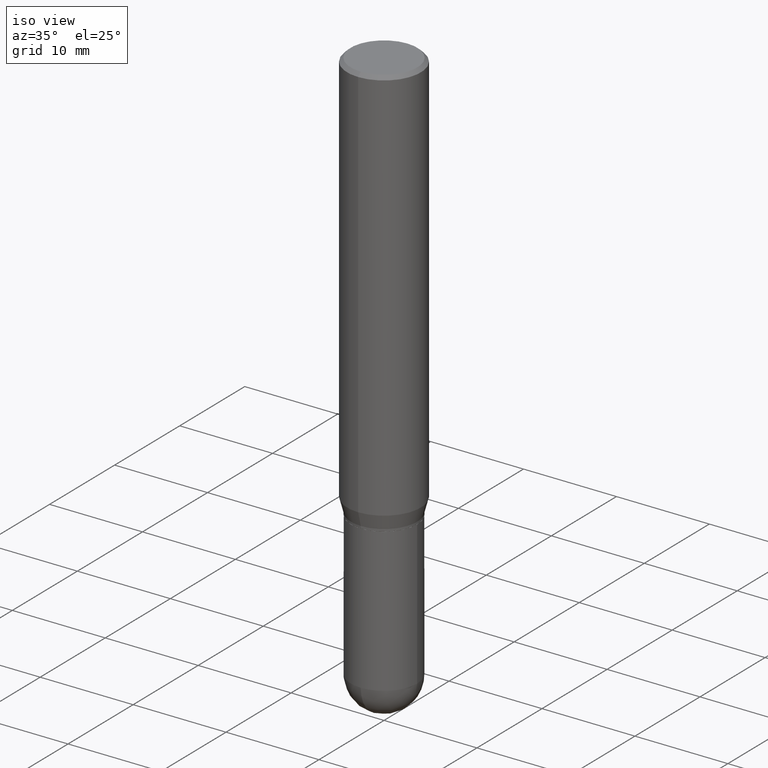
[diagram: clean part render]
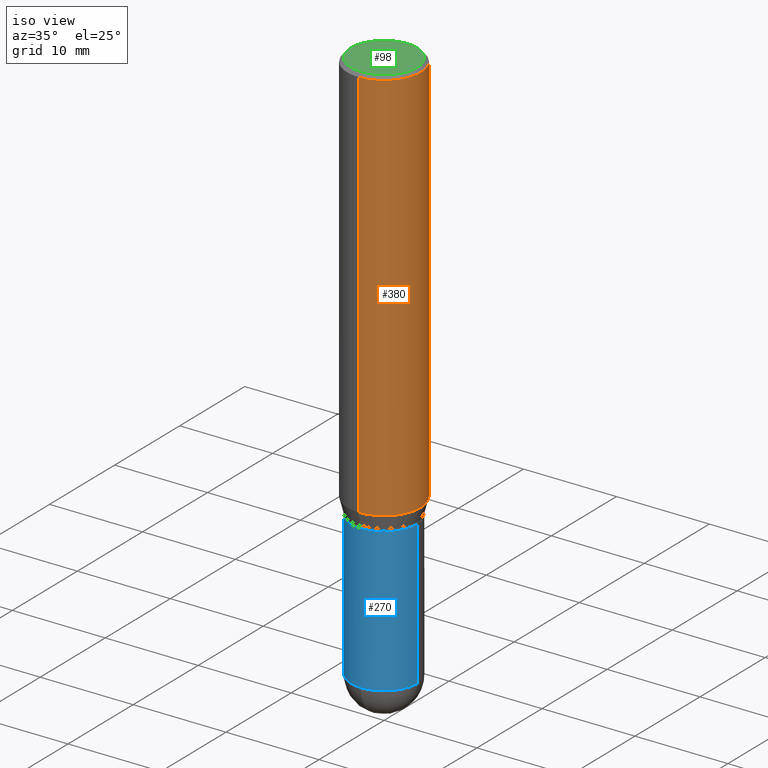
[diagram: same view with three faces highlighted in distinct colors, each labeled with its STEP entity id]
A machine part, iso view with three faces highlighted in distinct colors.
Their STEP definitions:

[orange] entity #380 — the highlighted cylindrical surface (partial cylindrical patch) has radius 3.9688 mm, axis along (-0, 0, 1).
#21 = VECTOR ( 'NONE', #397, 39.37007874015748143 ) ;
#28 = CARTESIAN_POINT ( 'NONE',  ( -1.091087918388437956E-15, -0.1562500000000058842, -1.681593404861546404 ) ) ;
#29 = DIRECTION ( 'NONE',  ( -2.445345981516174728E-29, 3.491657230759845150E-15, 1.000000000000000000 ) ) ;
#34 = CARTESIAN_POINT ( 'NONE',  ( 4.112077675122285455E-29, -5.871547771282887545E-15, -1.681593404861546848 ) ) ;
#55 = EDGE_CURVE ( 'NONE', #282, #95, #357, .T. ) ;
#95 = VERTEX_POINT ( 'NONE', #359 ) ;
#108 = EDGE_CURVE ( 'NONE', #136, #282, #284, .T. ) ;
#122 = CARTESIAN_POINT ( 'NONE',  ( 1.110223024625197561E-15, 0.1562499999999941436, -1.681593404861547514 ) ) ;
#134 = ORIENTED_EDGE ( 'NONE', *, *, #55, .F. ) ;
#136 = VERTEX_POINT ( 'NONE', #28 ) ;
#162 = VERTEX_POINT ( 'NONE', #122 ) ;
#166 = DIRECTION ( 'NONE',  ( -2.445345981516174448E-29, 3.491657230759844755E-15, 1.000000000000000000 ) ) ;
#168 = CARTESIAN_POINT ( 'NONE',  ( -1.091087918388478976E-15, -0.1562500000000000000, 5.455714423062258293E-16 ) ) ;
#177 = ORIENTED_EDGE ( 'NONE', *, *, #108, .F. ) ;
#183 = ORIENTED_EDGE ( 'NONE', *, *, #366, .T. ) ;
#203 = DIRECTION ( 'NONE',  ( -6.982962677686265133E-15, -1.000000000000000000, 3.491657230759845150E-15 ) ) ;
#209 = AXIS2_PLACEMENT_3D ( 'NONE', #486, #297, #203 ) ;
#243 = CARTESIAN_POINT ( 'NONE',  ( 1.110223024625156343E-15, 0.1562500000000000000, -5.455714423062258293E-16 ) ) ;
#247 = AXIS2_PLACEMENT_3D ( 'NONE', #434, #289, #405 ) ;
#263 = EDGE_CURVE ( 'NONE', #136, #162, #414, .T. ) ;
#282 = VERTEX_POINT ( 'NONE', #422 ) ;
#284 = LINE ( 'NONE', #168, #437 ) ;
#287 = AXIS2_PLACEMENT_3D ( 'NONE', #34, #29, #504 ) ;
#289 = DIRECTION ( 'NONE',  ( -2.445345981516174728E-29, 3.491657230759845150E-15, 1.000000000000000000 ) ) ;
#297 = DIRECTION ( 'NONE',  ( -2.445345981516174728E-29, 3.491657230759845150E-15, 1.000000000000000000 ) ) ;
#357 = CIRCLE ( 'NONE', #247, 0.1562500000000000000 ) ;
#359 = CARTESIAN_POINT ( 'NONE',  ( 1.110223024625197561E-15, 0.1562499999999999445, -0.01500000000000066558 ) ) ;
#366 = EDGE_CURVE ( 'NONE', #162, #95, #430, .T. ) ;
#380 = ADVANCED_FACE ( 'NONE', ( #433 ), #483, .T. ) ;
#397 = DIRECTION ( 'NONE',  ( -2.445345981516174448E-29, 3.491657230759844755E-15, 1.000000000000000000 ) ) ;
#405 = DIRECTION ( 'NONE',  ( -6.982962677686265133E-15, -1.000000000000000000, 3.496765431890256920E-15 ) ) ;
#410 = EDGE_LOOP ( 'NONE', ( #443, #183, #134, #177 ) ) ;
#414 = CIRCLE ( 'NONE', #287, 0.1562500000000000000 ) ;
#422 = CARTESIAN_POINT ( 'NONE',  ( -1.091087918388478779E-15, -0.1562500000000000833, -0.01499999999999957270 ) ) ;
#430 = LINE ( 'NONE', #243, #21 ) ;
#433 = FACE_OUTER_BOUND ( 'NONE', #410, .T. ) ;
#434 = CARTESIAN_POINT ( 'NONE',  ( 3.668018972274291047E-31, -5.237485846139809263E-17, -0.01500000000000011914 ) ) ;
#437 = VECTOR ( 'NONE', #166, 39.37007874015748143 ) ;
#443 = ORIENTED_EDGE ( 'NONE', *, *, #263, .T. ) ;
#483 = CYLINDRICAL_SURFACE ( 'NONE', #209, 0.1562500000000000000 ) ;
#486 = CARTESIAN_POINT ( 'NONE',  ( 0.000000000000000000, 0.000000000000000000, 0.000000000000000000 ) ) ;
#504 = DIRECTION ( 'NONE',  ( -6.982962677686265133E-15, -1.000000000000000000, 3.496765431890256920E-15 ) ) ;

[blue] entity #270 — the highlighted cylindrical surface (partial cylindrical patch) has radius 3.5712 mm, axis along (-0, 0, 1).
#8 = CARTESIAN_POINT ( 'NONE',  ( -0.1406000000000000028, -6.174923620442310269E-15, -1.750000000000000222 ) ) ;
#13 = VERTEX_POINT ( 'NONE', #300 ) ;
#24 = EDGE_CURVE ( 'NONE', #142, #478, #311, .T. ) ;
#48 = VERTEX_POINT ( 'NONE', #8 ) ;
#49 = CIRCLE ( 'NONE', #118, 0.1406000000000000028 ) ;
#59 = AXIS2_PLACEMENT_3D ( 'NONE', #423, #80, #355 ) ;
#80 = DIRECTION ( 'NONE',  ( -2.445468806185136597E-29, 3.491481338843145583E-15, 1.000000000000000000 ) ) ;
#97 = CARTESIAN_POINT ( 'NONE',  ( 0.1406000000000000028, -7.091896895458194566E-15, -1.750000000000000222 ) ) ;
#106 = DIRECTION ( 'NONE',  ( 1.000000000000000000, -6.982962677686268288E-15, 4.876176775795936353E-29 ) ) ;
#112 = CYLINDRICAL_SURFACE ( 'NONE', #225, 0.1406000000000000028 ) ;
#116 = CARTESIAN_POINT ( 'NONE',  ( 0.000000000000000000, 0.000000000000000000, 0.000000000000000000 ) ) ;
#118 = AXIS2_PLACEMENT_3D ( 'NONE', #156, #192, #190 ) ;
#127 = ORIENTED_EDGE ( 'NONE', *, *, #178, .F. ) ;
#129 = CIRCLE ( 'NONE', #299, 0.1406000000000000305 ) ;
#135 = DIRECTION ( 'NONE',  ( -2.445468806185136597E-29, 3.491481338843145583E-15, 1.000000000000000000 ) ) ;
#142 = VERTEX_POINT ( 'NONE', #161 ) ;
#154 = CARTESIAN_POINT ( 'NONE',  ( -9.990230864786434913E-16, -0.1406000000000083017, -2.359399999999999498 ) ) ;
#156 = CARTESIAN_POINT ( 'NONE',  ( 4.279570410823989044E-29, -6.110092342975505460E-15, -1.750000000000000222 ) ) ;
#161 = CARTESIAN_POINT ( 'NONE',  ( 0.1406000000000000583, -8.155751259403701439E-15, -2.359399999999999942 ) ) ;
#178 = EDGE_CURVE ( 'NONE', #48, #478, #49, .T. ) ;
#182 = VECTOR ( 'NONE', #454, 39.37007874015748143 ) ;
#190 = DIRECTION ( 'NONE',  ( 1.000000000000000000, -6.982962677686265133E-15, 0.000000000000000000 ) ) ;
#192 = DIRECTION ( 'NONE',  ( -2.445468806185136597E-29, 3.491481338843145583E-15, 1.000000000000000000 ) ) ;
#200 = EDGE_CURVE ( 'NONE', #13, #276, #447, .T. ) ;
#225 = AXIS2_PLACEMENT_3D ( 'NONE', #116, #428, #106 ) ;
#227 = CARTESIAN_POINT ( 'NONE',  ( -0.1406000000000000028, 9.990230864787008809E-16, -6.916022736898399140E-30 ) ) ;
#258 = ORIENTED_EDGE ( 'NONE', *, *, #24, .T. ) ;
#269 = EDGE_LOOP ( 'NONE', ( #424, #469, #317, #258, #127 ) ) ;
#270 = ADVANCED_FACE ( 'NONE', ( #507 ), #112, .T. ) ;
#276 = VERTEX_POINT ( 'NONE', #154 ) ;
#277 = LINE ( 'NONE', #227, #307 ) ;
#280 = EDGE_CURVE ( 'NONE', #13, #48, #277, .T. ) ;
#299 = AXIS2_PLACEMENT_3D ( 'NONE', #442, #135, #372 ) ;
#300 = CARTESIAN_POINT ( 'NONE',  ( -0.1406000000000000583, -6.174923620442310269E-15, -2.359399999999999942 ) ) ;
#307 = VECTOR ( 'NONE', #460, 39.37007874015748143 ) ;
#311 = LINE ( 'NONE', #459, #182 ) ;
#317 = ORIENTED_EDGE ( 'NONE', *, *, #435, .T. ) ;
#355 = DIRECTION ( 'NONE',  ( 1.000000000000000000, -6.982962677686270655E-15, 0.000000000000000000 ) ) ;
#372 = DIRECTION ( 'NONE',  ( 1.000000000000000000, -6.982962677686270655E-15, 0.000000000000000000 ) ) ;
#423 = CARTESIAN_POINT ( 'NONE',  ( 5.769839101313211634E-29, -8.237801070866517629E-15, -2.359399999999999942 ) ) ;
#424 = ORIENTED_EDGE ( 'NONE', *, *, #280, .F. ) ;
#428 = DIRECTION ( 'NONE',  ( -2.445468806185136597E-29, 3.491481338843145583E-15, 1.000000000000000000 ) ) ;
#435 = EDGE_CURVE ( 'NONE', #276, #142, #129, .T. ) ;
#442 = CARTESIAN_POINT ( 'NONE',  ( 5.769839101313211634E-29, -8.237801070866517629E-15, -2.359399999999999942 ) ) ;
#447 = CIRCLE ( 'NONE', #59, 0.1406000000000000305 ) ;
#454 = DIRECTION ( 'NONE',  ( -2.445468806185136877E-29, 3.491481338843145188E-15, 1.000000000000000000 ) ) ;
#459 = CARTESIAN_POINT ( 'NONE',  ( 0.1406000000000000028, -9.818045524826893030E-16, 6.855904546769086274E-30 ) ) ;
#460 = DIRECTION ( 'NONE',  ( -2.445468806185136877E-29, 3.491481338843145188E-15, 1.000000000000000000 ) ) ;
#469 = ORIENTED_EDGE ( 'NONE', *, *, #200, .T. ) ;
#478 = VERTEX_POINT ( 'NONE', #97 ) ;
#507 = FACE_OUTER_BOUND ( 'NONE', #269, .T. ) ;

[green] entity #98 — the highlighted planar face has unit normal (0, -0, -1).
#5 = ORIENTED_EDGE ( 'NONE', *, *, #331, .T. ) ;
#16 = EDGE_CURVE ( 'NONE', #367, #378, #148, .T. ) ;
#18 = EDGE_LOOP ( 'NONE', ( #323, #5 ) ) ;
#26 = AXIS2_PLACEMENT_3D ( 'NONE', #449, #99, #304 ) ;
#61 = AXIS2_PLACEMENT_3D ( 'NONE', #463, #68, #239 ) ;
#68 = DIRECTION ( 'NONE',  ( -2.445345981516174728E-29, 3.491657230759845150E-15, 1.000000000000000000 ) ) ;
#70 = PLANE ( 'NONE',  #298 ) ;
#98 = ADVANCED_FACE ( 'NONE', ( #464 ), #70, .F. ) ;
#99 = DIRECTION ( 'NONE',  ( -2.445345981516174728E-29, 3.491657230759845150E-15, 1.000000000000000000 ) ) ;
#117 = DIRECTION ( 'NONE',  ( 2.445345981516174448E-29, -3.491657230759844755E-15, -1.000000000000000000 ) ) ;
#148 = CIRCLE ( 'NONE', #26, 0.1412499999999999867 ) ;
#235 = CARTESIAN_POINT ( 'NONE',  ( 9.863434782231850151E-16, 0.1412499999999999867, -5.532464397475664005E-16 ) ) ;
#239 = DIRECTION ( 'NONE',  ( -6.982962677686265922E-15, -1.000000000000000000, 3.491657230759845544E-15 ) ) ;
#260 = CIRCLE ( 'NONE', #61, 0.1412499999999999867 ) ;
#298 = AXIS2_PLACEMENT_3D ( 'NONE', #235, #117, #316 ) ;
#304 = DIRECTION ( 'NONE',  ( -6.982962677686265922E-15, -1.000000000000000000, 3.491657230759845544E-15 ) ) ;
#316 = DIRECTION ( 'NONE',  ( 6.982962677686265922E-15, 1.000000000000000000, -3.491657230759844755E-15 ) ) ;
#323 = ORIENTED_EDGE ( 'NONE', *, *, #16, .T. ) ;
#331 = EDGE_CURVE ( 'NONE', #378, #367, #260, .T. ) ;
#362 = CARTESIAN_POINT ( 'NONE',  ( 1.038715698305832292E-15, 0.1412499999999999867, -6.132962956503047871E-16 ) ) ;
#367 = VERTEX_POINT ( 'NONE', #362 ) ;
#378 = VERTEX_POINT ( 'NONE', #480 ) ;
#449 = CARTESIAN_POINT ( 'NONE',  ( 2.936853476447729499E-45, -4.193470271377658655E-31, -1.200997118054766005E-16 ) ) ;
#463 = CARTESIAN_POINT ( 'NONE',  ( 2.936853476447729499E-45, -4.193470271377658655E-31, -1.200997118054766005E-16 ) ) ;
#464 = FACE_OUTER_BOUND ( 'NONE', #18, .T. ) ;
#480 = CARTESIAN_POINT ( 'NONE',  ( -1.020499077168515012E-15, -0.1412499999999999867, 3.730968720393515368E-16 ) ) ;